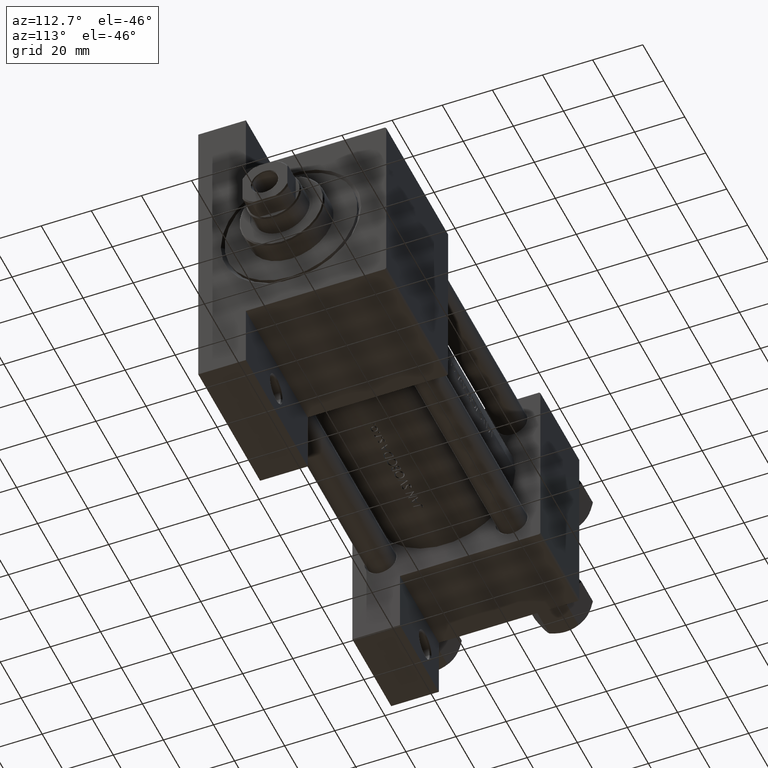
[diagram: clean part render]
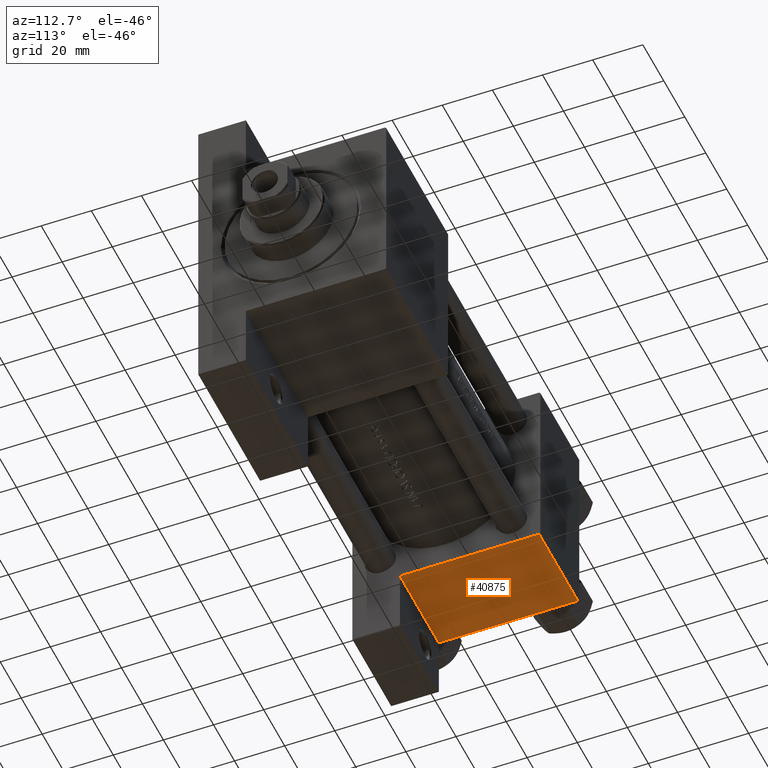
[diagram: same view with one face highlighted and labeled with its STEP entity id]
A machine part, auxiliary view. The second image highlights one B-rep face of the part: STEP entity #40875.
In plain terms, the highlighted planar face has unit normal (0, 0, -1).
Its self-contained STEP definition (entity closure, byte-faithful):
#1069 = CARTESIAN_POINT ( 'NONE',  ( 37.00000000000000000, 37.49999999999999289, 37.50000000000000000 ) ) ;
#1241 = ORIENTED_EDGE ( 'NONE', *, *, #28563, .T. ) ;
#1242 = VERTEX_POINT ( 'NONE', #13860 ) ;
#1720 = FACE_OUTER_BOUND ( 'NONE', #46340, .T. ) ;
#1784 = LINE ( 'NONE', #1069, #37433 ) ;
#1907 = DIRECTION ( 'NONE',  ( 1.000000000000000000, 0.000000000000000000, 0.000000000000000000 ) ) ;
#6019 = VERTEX_POINT ( 'NONE', #25299 ) ;
#7042 = DIRECTION ( 'NONE',  ( 1.000000000000000000, -3.750753461571474945E-16, 0.000000000000000000 ) ) ;
#8938 = CARTESIAN_POINT ( 'NONE',  ( 0.000000000000000000, 37.49999999999999289, 37.00000000000000000 ) ) ;
#11254 = VECTOR ( 'NONE', #26173, 1000.000000000000000 ) ;
#11364 = LINE ( 'NONE', #21732, #45327 ) ;
#11489 = CARTESIAN_POINT ( 'NONE',  ( 0.000000000000000000, 37.49999999999999289, 37.50000000000000000 ) ) ;
#12492 = ORIENTED_EDGE ( 'NONE', *, *, #34732, .T. ) ;
#12984 = CARTESIAN_POINT ( 'NONE',  ( 37.00000000000000711, 37.50000000000000711, -18.50000000000000355 ) ) ;
#13860 = CARTESIAN_POINT ( 'NONE',  ( 37.00000000000000000, 37.49999999999999289, 37.00000000000000000 ) ) ;
#17529 = AXIS2_PLACEMENT_3D ( 'NONE', #31290, #45717, #42105 ) ;
#18620 = ORIENTED_EDGE ( 'NONE', *, *, #31807, .F. ) ;
#21732 = CARTESIAN_POINT ( 'NONE',  ( 8.470280871287256020E-15, 37.50000000000002842, -18.49999999999999645 ) ) ;
#25299 = CARTESIAN_POINT ( 'NONE',  ( 0.000000000000000000, 37.49999999999999289, -18.49999999999999645 ) ) ;
#26173 = DIRECTION ( 'NONE',  ( 0.000000000000000000, 0.000000000000000000, -1.000000000000000000 ) ) ;
#27375 = VERTEX_POINT ( 'NONE', #8938 ) ;
#27415 = CARTESIAN_POINT ( 'NONE',  ( 37.00000000000000000, 37.49999999999999289, 37.00000000000000000 ) ) ;
#28563 = EDGE_CURVE ( 'NONE', #27375, #1242, #39391, .T. ) ;
#28689 = DIRECTION ( 'NONE',  ( 0.000000000000000000, 0.000000000000000000, -1.000000000000000000 ) ) ;
#29778 = LINE ( 'NONE', #11489, #11254 ) ;
#31290 = CARTESIAN_POINT ( 'NONE',  ( 37.00000000000000000, 37.49999999999999289, 37.50000000000000000 ) ) ;
#31807 = EDGE_CURVE ( 'NONE', #27375, #6019, #29778, .T. ) ;
#34193 = VECTOR ( 'NONE', #1907, 1000.000000000000000 ) ;
#34732 = EDGE_CURVE ( 'NONE', #1242, #38820, #1784, .T. ) ;
#37433 = VECTOR ( 'NONE', #28689, 1000.000000000000000 ) ;
#38820 = VERTEX_POINT ( 'NONE', #12984 ) ;
#39258 = ORIENTED_EDGE ( 'NONE', *, *, #44322, .F. ) ;
#39391 = LINE ( 'NONE', #27415, #34193 ) ;
#40875 = ADVANCED_FACE ( 'NONE', ( #1720 ), #42562, .T. ) ;
#42105 = DIRECTION ( 'NONE',  ( 0.000000000000000000, -0.000000000000000000, 1.000000000000000000 ) ) ;
#42562 = PLANE ( 'NONE',  #17529 ) ;
#44322 = EDGE_CURVE ( 'NONE', #6019, #38820, #11364, .T. ) ;
#45327 = VECTOR ( 'NONE', #7042, 1000.000000000000000 ) ;
#45717 = DIRECTION ( 'NONE',  ( -0.000000000000000000, 1.000000000000000000, 0.000000000000000000 ) ) ;
#46340 = EDGE_LOOP ( 'NONE', ( #39258, #18620, #1241, #12492 ) ) ;